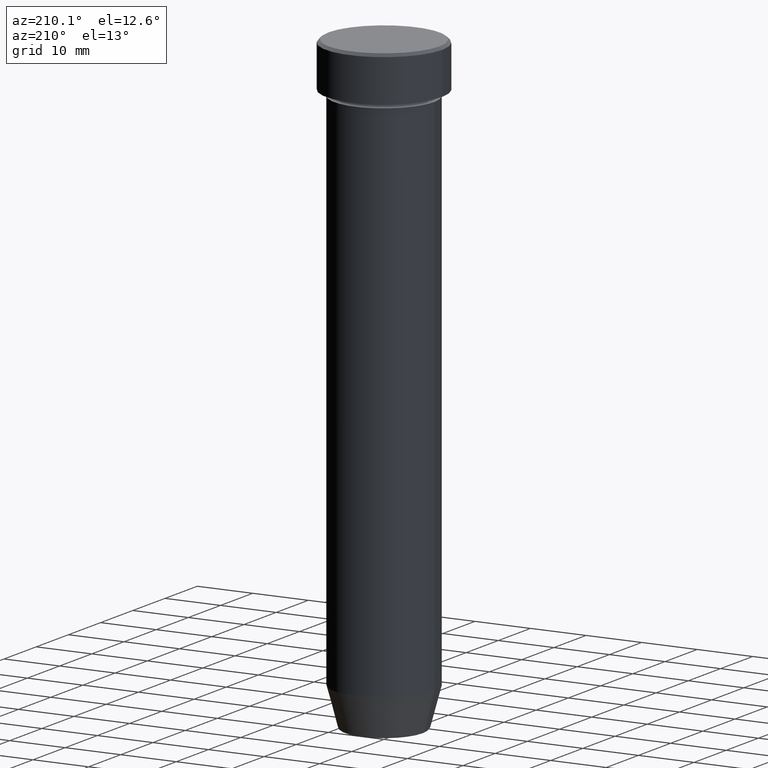
[diagram: clean part render]
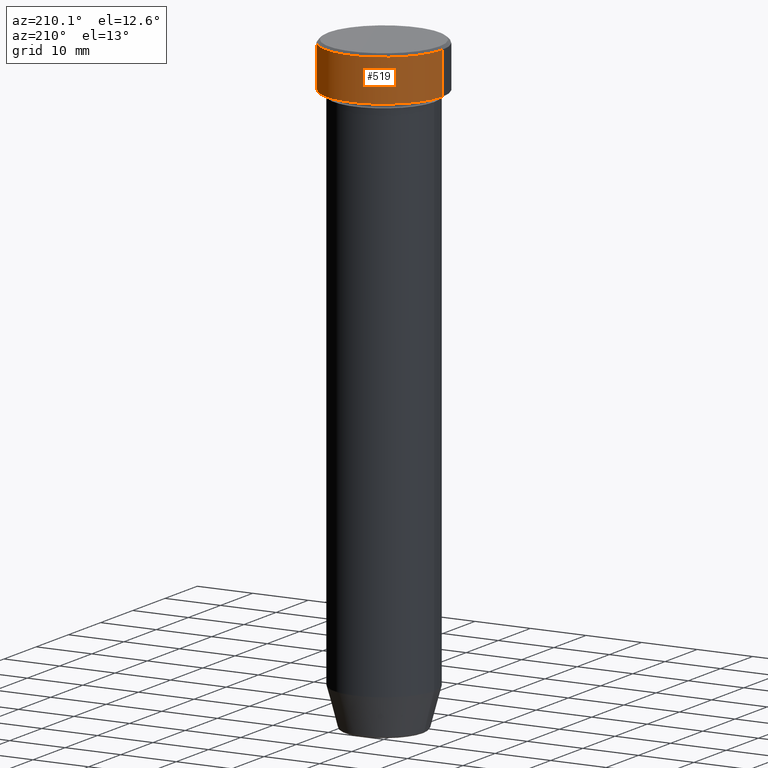
[diagram: same view with one face highlighted and labeled with its STEP entity id]
A machine part, auxiliary view. The second image highlights one B-rep face of the part: STEP entity #519.
In plain terms, the highlighted cylindrical surface (partial cylindrical patch) has radius 10.5 mm, axis along (-0, -0, 1).
Its self-contained STEP definition (entity closure, byte-faithful):
#6 = VERTEX_POINT ( 'NONE', #308 ) ;
#25 = FACE_OUTER_BOUND ( 'NONE', #360, .T. ) ;
#30 = VERTEX_POINT ( 'NONE', #74 ) ;
#34 = ORIENTED_EDGE ( 'NONE', *, *, #500, .T. ) ;
#53 = DIRECTION ( 'NONE',  ( 0.000000000000000000, 0.000000000000000000, -1.000000000000000000 ) ) ;
#54 = CIRCLE ( 'NONE', #574, 10.50000000000000000 ) ;
#63 = CARTESIAN_POINT ( 'NONE',  ( 0.000000000000000000, 0.000000000000000000, -8.000000000000000000 ) ) ;
#64 = VERTEX_POINT ( 'NONE', #277 ) ;
#71 = CARTESIAN_POINT ( 'NONE',  ( 0.000000000000000000, 0.000000000000000000, 0.000000000000000000 ) ) ;
#74 = CARTESIAN_POINT ( 'NONE',  ( -10.50000000000000000, 1.285879139104720831E-15, -8.000000000000000000 ) ) ;
#76 = DIRECTION ( 'NONE',  ( -0.000000000000000000, -0.000000000000000000, 1.000000000000000000 ) ) ;
#100 = CARTESIAN_POINT ( 'NONE',  ( 0.000000000000000000, 0.000000000000000000, -0.5000000000000023315 ) ) ;
#108 = DIRECTION ( 'NONE',  ( -0.000000000000000000, -0.000000000000000000, 1.000000000000000000 ) ) ;
#118 = DIRECTION ( 'NONE',  ( -0.000000000000000000, -0.000000000000000000, 1.000000000000000000 ) ) ;
#163 = VECTOR ( 'NONE', #76, 1000.000000000000000 ) ;
#165 = CARTESIAN_POINT ( 'NONE',  ( -10.50000000000000000, 1.285879139104720831E-15, 0.000000000000000000 ) ) ;
#170 = VERTEX_POINT ( 'NONE', #286 ) ;
#199 = LINE ( 'NONE', #165, #163 ) ;
#204 = ORIENTED_EDGE ( 'NONE', *, *, #565, .F. ) ;
#221 = CIRCLE ( 'NONE', #390, 10.50000000000000000 ) ;
#277 = CARTESIAN_POINT ( 'NONE',  ( 10.50000000000000000, 0.000000000000000000, -0.5000000000000023315 ) ) ;
#285 = EDGE_CURVE ( 'NONE', #6, #30, #221, .T. ) ;
#286 = CARTESIAN_POINT ( 'NONE',  ( -10.50000000000000000, 1.285879139104720831E-15, -0.5000000000000023315 ) ) ;
#298 = LINE ( 'NONE', #584, #562 ) ;
#308 = CARTESIAN_POINT ( 'NONE',  ( 10.50000000000000000, 0.000000000000000000, -8.000000000000000000 ) ) ;
#336 = ORIENTED_EDGE ( 'NONE', *, *, #285, .T. ) ;
#349 = DIRECTION ( 'NONE',  ( 1.000000000000000000, 0.000000000000000000, 0.000000000000000000 ) ) ;
#360 = EDGE_LOOP ( 'NONE', ( #336, #579, #34, #204 ) ) ;
#390 = AXIS2_PLACEMENT_3D ( 'NONE', #63, #494, #349 ) ;
#441 = AXIS2_PLACEMENT_3D ( 'NONE', #71, #108, #493 ) ;
#449 = CYLINDRICAL_SURFACE ( 'NONE', #441, 10.50000000000000000 ) ;
#493 = DIRECTION ( 'NONE',  ( 1.000000000000000000, 0.000000000000000000, 0.000000000000000000 ) ) ;
#494 = DIRECTION ( 'NONE',  ( -0.000000000000000000, -0.000000000000000000, 1.000000000000000000 ) ) ;
#498 = DIRECTION ( 'NONE',  ( 1.000000000000000000, 0.000000000000000000, 0.000000000000000000 ) ) ;
#500 = EDGE_CURVE ( 'NONE', #170, #64, #54, .T. ) ;
#512 = EDGE_CURVE ( 'NONE', #30, #170, #199, .T. ) ;
#519 = ADVANCED_FACE ( 'NONE', ( #25 ), #449, .T. ) ;
#562 = VECTOR ( 'NONE', #118, 1000.000000000000000 ) ;
#565 = EDGE_CURVE ( 'NONE', #6, #64, #298, .T. ) ;
#574 = AXIS2_PLACEMENT_3D ( 'NONE', #100, #53, #498 ) ;
#579 = ORIENTED_EDGE ( 'NONE', *, *, #512, .T. ) ;
#584 = CARTESIAN_POINT ( 'NONE',  ( 10.50000000000000000, 0.000000000000000000, 0.000000000000000000 ) ) ;